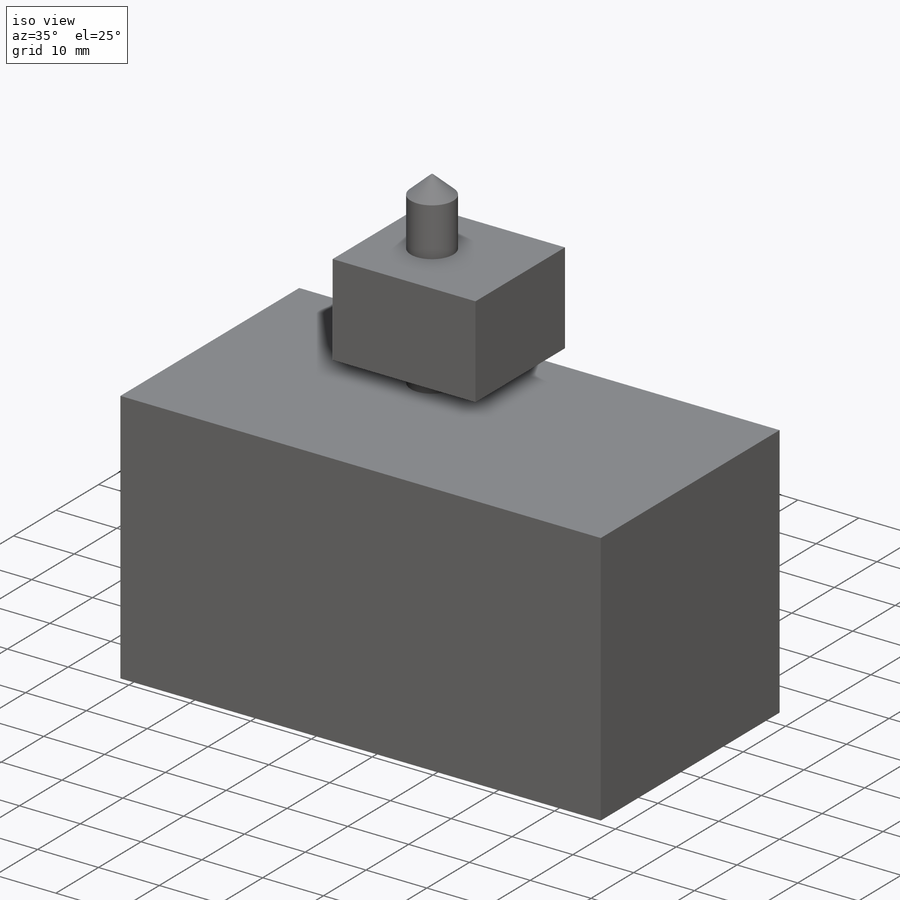
[diagram: iso view]
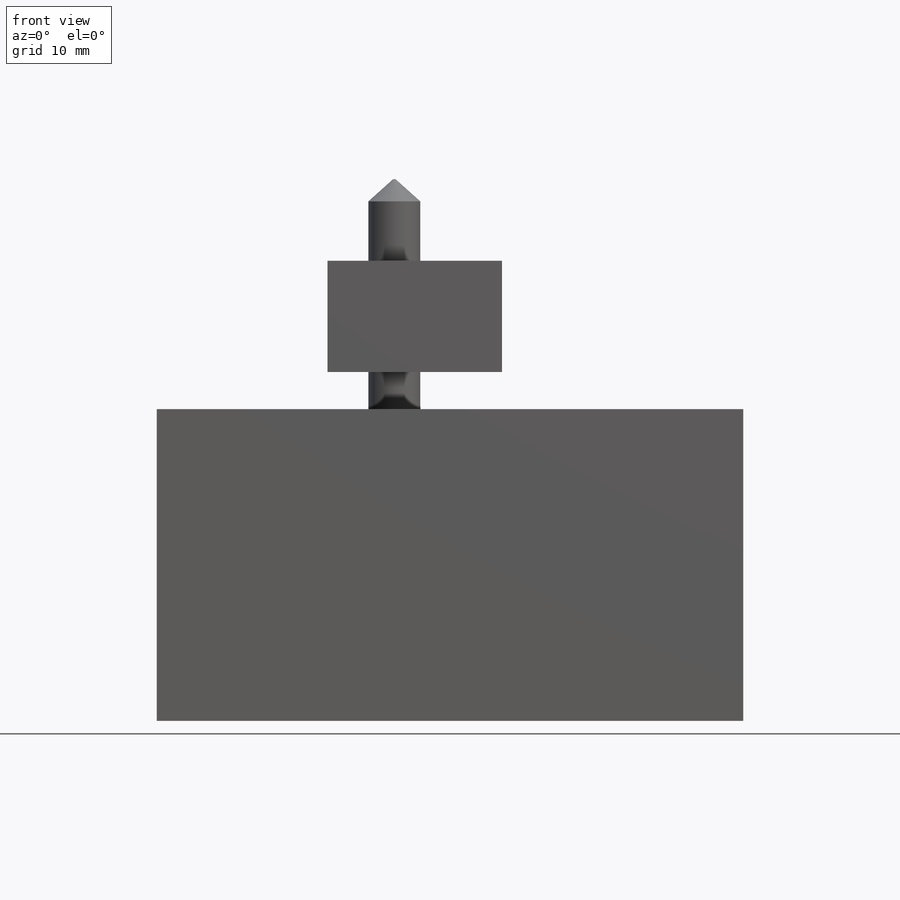
[diagram: front view]
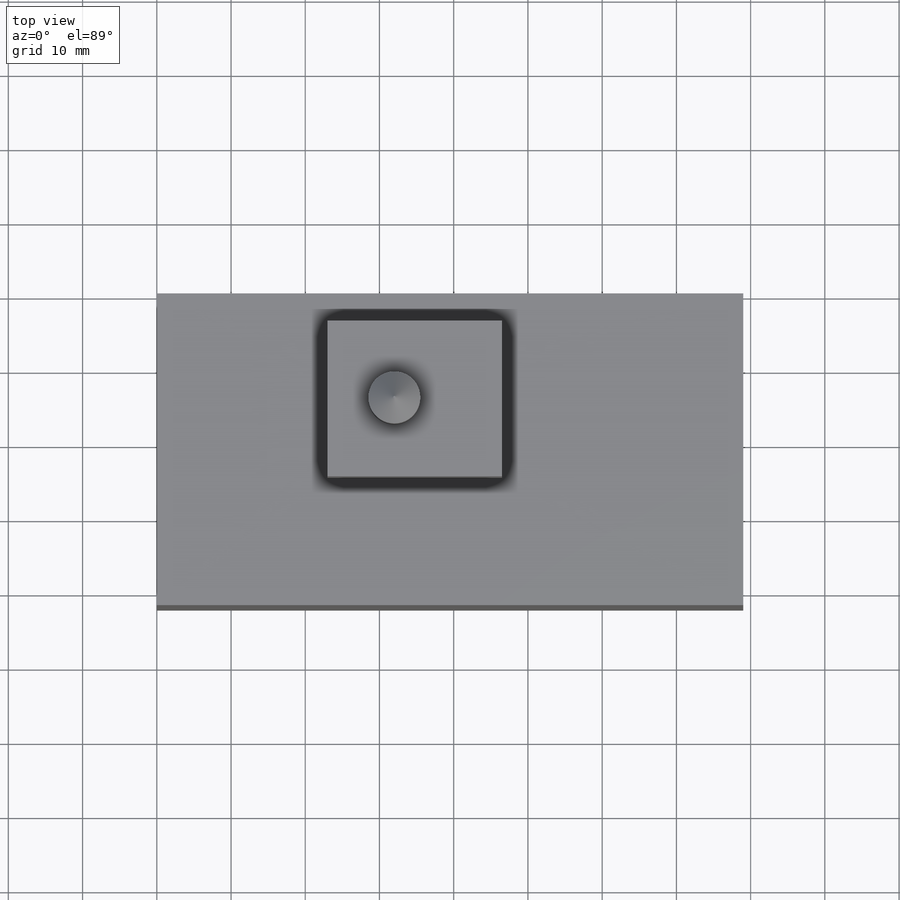
[diagram: top view]
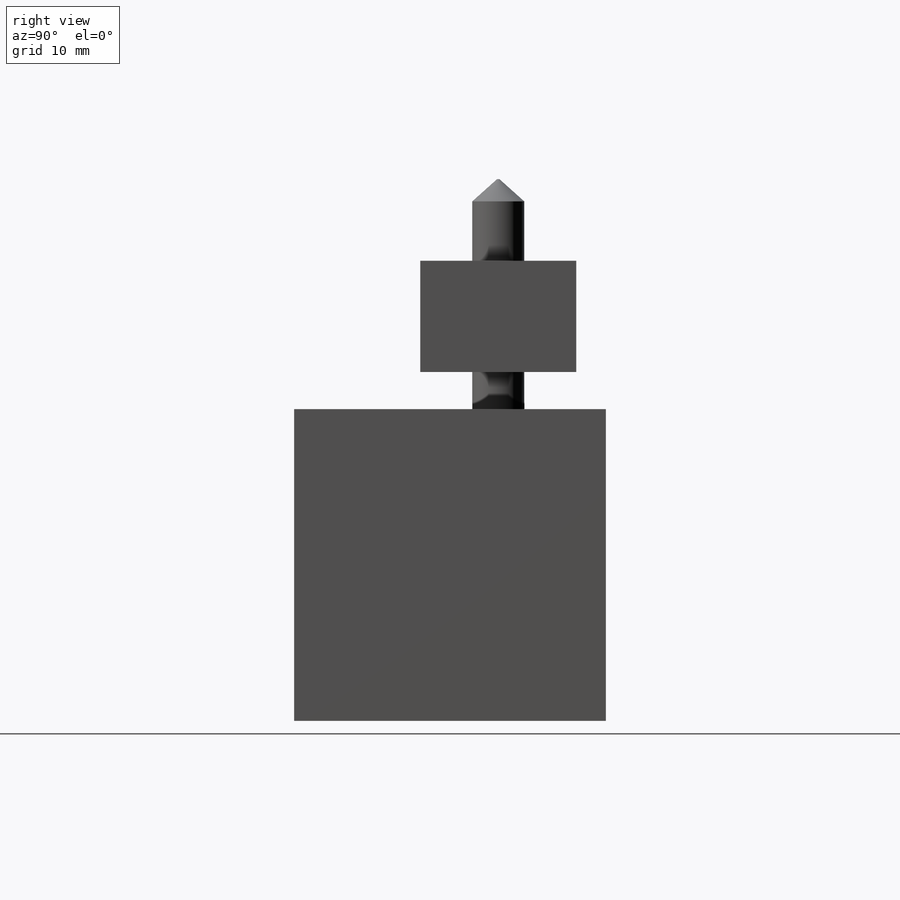
[diagram: right view]
SOLIDWORKS PART (.sldprt)
format: sldprt  version: not decoded by parser v0  size: 222,208 bytes
history: native  units: mm
features: sketch x5, plane x4, extrude x4, material x1, revolve x1 (+9 scaffold rows collapsed)
feature tree (24):
  scaffold x9  (default folders/planes/origin — collapsed)
  material  "Material <not specified>"
  plane  "Plan de face"
  plane  "Plan de dessus"
  plane  "Plan de droite"
  sketch  "Sketch1"  dims[D1=79.0mm D2=42.0mm]
  extrude  "Boss-Extrude1"  Depth=42mm
  sketch  "Sketch3"  dims[D1=23.5mm D2=21.0mm D3=14.5mm D4=56.0mm]
  extrude  "Boss-Extrude2"  Depth=15mm
  sketch  "Sketch4"  dims[D1=7.0mm]
  extrude  "Boss-Extrude3"  Depth=8mm
  plane  "Plane1"
  sketch  "Sketch5"  dims[D1=0.15mm D2=3.0mm]
  revolve  "Revolve1"  Angle=360deg
  sketch  "Sketch6"  dims[D1=10.0mm D2=10.0mm]
  extrude  "Boss-Extrude4"  [1 undecoded]
decode coverage: 9 of 10 modeling features carry decoded parameters
note: 1 parameter value undecoded
note: suppression state not decoded; provenance and decode notes live in map.json
